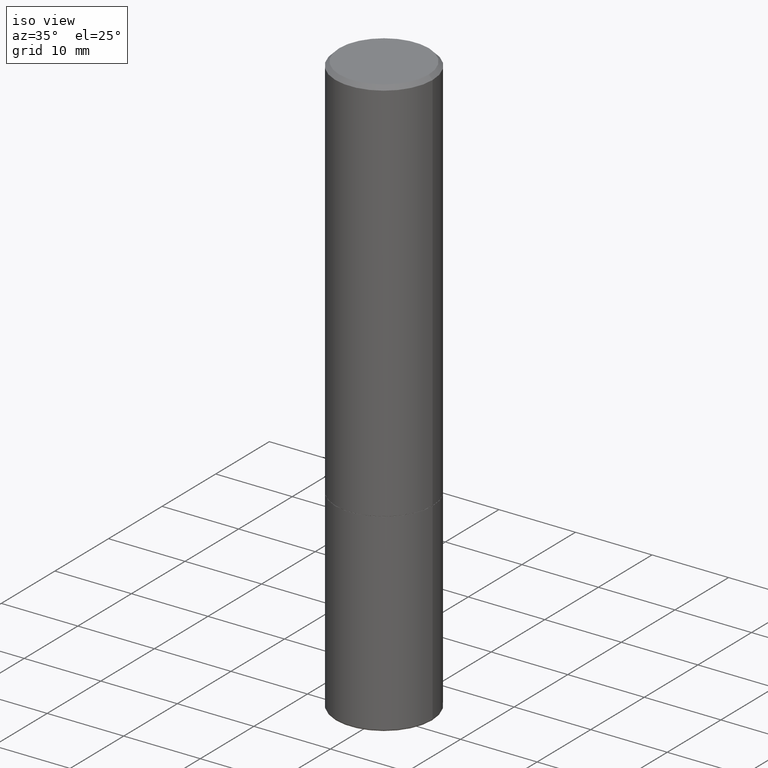
[diagram: clean part render]
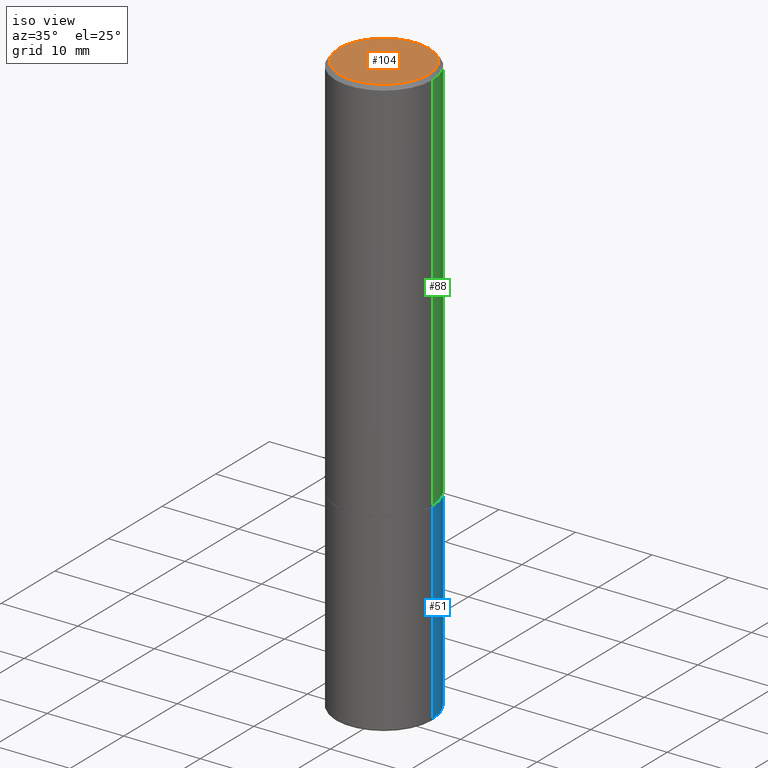
[diagram: same view with three faces highlighted in distinct colors, each labeled with its STEP entity id]
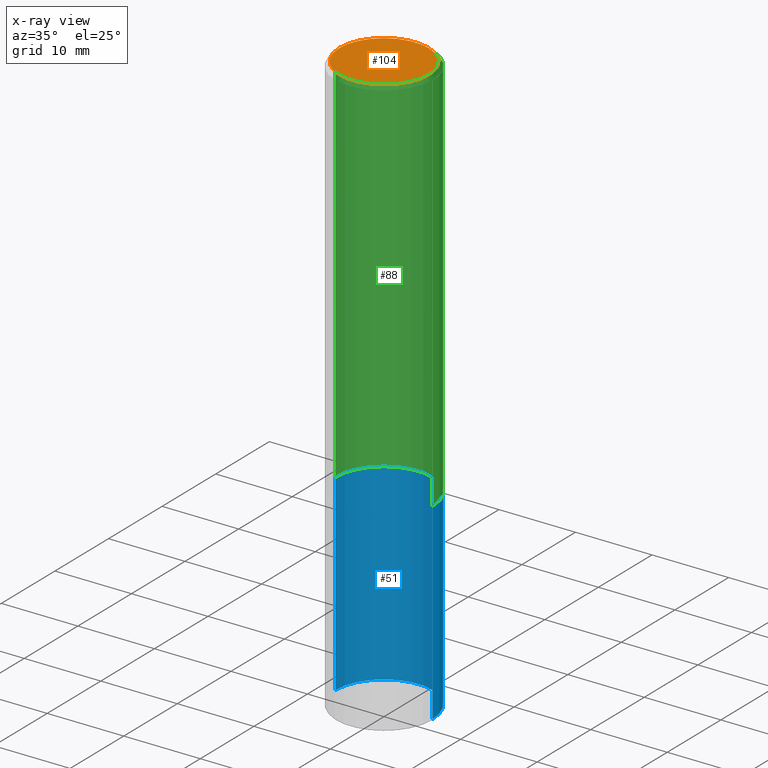
[diagram: x-ray of the same camera — body ghosted, the three highlighted faces saturated]
A machine part, iso view with three faces highlighted in distinct colors.
The next image is the same camera in x-ray (body ghosted, the three faces saturated) — at least one of them is partly hidden behind the body in this view.
Their STEP definitions:

[orange] entity #104 — the highlighted planar face has unit normal (0, -0, -1).
#18 = CARTESIAN_POINT ( 'NONE',  ( -0.2299999999999999267, 1.640996229256272519E-15, 4.695363739109317495E-17 ) ) ;
#64 = CIRCLE ( 'NONE', #195, 0.2299999999999999267 ) ;
#67 = DIRECTION ( 'NONE',  ( 2.438088387897960049E-29, -3.491481338843145188E-15, -1.000000000000000000 ) ) ;
#71 = EDGE_LOOP ( 'NONE', ( #314, #197 ) ) ;
#75 = EDGE_CURVE ( 'NONE', #294, #129, #64, .T. ) ;
#84 = DIRECTION ( 'NONE',  ( -2.445468806185136597E-29, 3.491481338843145583E-15, 1.000000000000000000 ) ) ;
#93 = CIRCLE ( 'NONE', #203, 0.2299999999999999267 ) ;
#102 = PLANE ( 'NONE',  #267 ) ;
#104 = ADVANCED_FACE ( 'NONE', ( #136 ), #102, .F. ) ;
#115 = CARTESIAN_POINT ( 'NONE',  ( -1.148236555768741665E-45, 1.639377487418492057E-31, 4.695363739110452099E-17 ) ) ;
#128 = CARTESIAN_POINT ( 'NONE',  ( 0.2299999999999999267, -1.681434332853598617E-15, 4.695363739111602110E-17 ) ) ;
#129 = VERTEX_POINT ( 'NONE', #18 ) ;
#136 = FACE_OUTER_BOUND ( 'NONE', #71, .T. ) ;
#139 = CARTESIAN_POINT ( 'NONE',  ( -1.148236555768741665E-45, 1.639377487418492057E-31, 4.695363739110452099E-17 ) ) ;
#169 = DIRECTION ( 'NONE',  ( -2.445468806185136597E-29, 3.491481338843145583E-15, 1.000000000000000000 ) ) ;
#175 = DIRECTION ( 'NONE',  ( -1.000000000000000000, 6.982962677686265922E-15, -4.876176775795935793E-29 ) ) ;
#195 = AXIS2_PLACEMENT_3D ( 'NONE', #139, #169, #296 ) ;
#197 = ORIENTED_EDGE ( 'NONE', *, *, #75, .T. ) ;
#203 = AXIS2_PLACEMENT_3D ( 'NONE', #115, #84, #211 ) ;
#211 = DIRECTION ( 'NONE',  ( 1.000000000000000000, -6.982962677686267499E-15, 4.875813741439101456E-29 ) ) ;
#214 = EDGE_CURVE ( 'NONE', #129, #294, #93, .T. ) ;
#267 = AXIS2_PLACEMENT_3D ( 'NONE', #363, #67, #175 ) ;
#294 = VERTEX_POINT ( 'NONE', #128 ) ;
#296 = DIRECTION ( 'NONE',  ( 1.000000000000000000, -6.982962677686267499E-15, 4.875813741439101456E-29 ) ) ;
#314 = ORIENTED_EDGE ( 'NONE', *, *, #214, .T. ) ;
#363 = CARTESIAN_POINT ( 'NONE',  ( 1.606081415867840870E-15, 0.2299999999999999267, -7.795638892383710465E-16 ) ) ;

[blue] entity #51 — the highlighted cylindrical surface (partial cylindrical patch) has radius 6.35 mm, axis along (-0, 0, 1).
#1 = CARTESIAN_POINT ( 'NONE',  ( 7.311951730493558245E-29, -1.043952920314100628E-14, -2.990000000000000213 ) ) ;
#2 = ORIENTED_EDGE ( 'NONE', *, *, #366, .F. ) ;
#27 = CARTESIAN_POINT ( 'NONE',  ( 4.890937612370273754E-29, -6.982962677686291954E-15, -2.000000000000000444 ) ) ;
#32 = VERTEX_POINT ( 'NONE', #393 ) ;
#34 = ORIENTED_EDGE ( 'NONE', *, *, #339, .F. ) ;
#51 = ADVANCED_FACE ( 'NONE', ( #326 ), #99, .T. ) ;
#54 = VECTOR ( 'NONE', #288, 39.37007874015748143 ) ;
#87 = DIRECTION ( 'NONE',  ( -2.445468806185136597E-29, 3.491481338843145583E-15, 1.000000000000000000 ) ) ;
#99 = CYLINDRICAL_SURFACE ( 'NONE', #292, 0.2500000000000000000 ) ;
#125 = DIRECTION ( 'NONE',  ( 1.000000000000000000, -6.982962677686262766E-15, 0.000000000000000000 ) ) ;
#132 = ORIENTED_EDGE ( 'NONE', *, *, #372, .T. ) ;
#141 = CARTESIAN_POINT ( 'NONE',  ( 0.000000000000000000, 0.000000000000000000, 0.000000000000000000 ) ) ;
#158 = DIRECTION ( 'NONE',  ( -2.445468806185136597E-29, 3.491481338843145583E-15, 1.000000000000000000 ) ) ;
#160 = CARTESIAN_POINT ( 'NONE',  ( -0.2500000000000000000, 1.776356839400250465E-15, -1.229733772563726445E-29 ) ) ;
#162 = VERTEX_POINT ( 'NONE', #207 ) ;
#185 = DIRECTION ( 'NONE',  ( 1.000000000000000000, -6.982962677686266711E-15, 0.000000000000000000 ) ) ;
#186 = DIRECTION ( 'NONE',  ( -2.445468806185136877E-29, 3.491481338843145188E-15, 1.000000000000000000 ) ) ;
#196 = VECTOR ( 'NONE', #186, 39.37007874015748143 ) ;
#202 = DIRECTION ( 'NONE',  ( -2.445468806185136597E-29, 3.491481338843145583E-15, 1.000000000000000000 ) ) ;
#207 = CARTESIAN_POINT ( 'NONE',  ( 0.2499999999999998890, -1.218526987256257138E-14, -2.990000000000000213 ) ) ;
#218 = CARTESIAN_POINT ( 'NONE',  ( -0.2499999999999998890, -8.663172363740755817E-15, -2.990000000000000213 ) ) ;
#223 = CIRCLE ( 'NONE', #374, 0.2500000000000000000 ) ;
#224 = CARTESIAN_POINT ( 'NONE',  ( -0.2500000000000000000, -6.934889101013398653E-15, -2.000000000000000444 ) ) ;
#241 = DIRECTION ( 'NONE',  ( 1.000000000000000000, -6.982962677686266711E-15, 4.876176775795935793E-29 ) ) ;
#260 = EDGE_LOOP ( 'NONE', ( #320, #132, #2, #34 ) ) ;
#262 = CARTESIAN_POINT ( 'NONE',  ( 0.2500000000000000000, -1.745740669421566678E-15, 1.219044193948983948E-29 ) ) ;
#288 = DIRECTION ( 'NONE',  ( -2.445468806185136877E-29, 3.491481338843145188E-15, 1.000000000000000000 ) ) ;
#292 = AXIS2_PLACEMENT_3D ( 'NONE', #141, #202, #241 ) ;
#299 = VERTEX_POINT ( 'NONE', #218 ) ;
#310 = EDGE_CURVE ( 'NONE', #162, #299, #404, .T. ) ;
#320 = ORIENTED_EDGE ( 'NONE', *, *, #310, .T. ) ;
#326 = FACE_OUTER_BOUND ( 'NONE', #260, .T. ) ;
#339 = EDGE_CURVE ( 'NONE', #162, #32, #350, .T. ) ;
#350 = LINE ( 'NONE', #262, #196 ) ;
#357 = VERTEX_POINT ( 'NONE', #224 ) ;
#366 = EDGE_CURVE ( 'NONE', #32, #357, #223, .T. ) ;
#372 = EDGE_CURVE ( 'NONE', #299, #357, #414, .T. ) ;
#374 = AXIS2_PLACEMENT_3D ( 'NONE', #27, #158, #185 ) ;
#383 = AXIS2_PLACEMENT_3D ( 'NONE', #1, #87, #125 ) ;
#393 = CARTESIAN_POINT ( 'NONE',  ( 0.2500000000000000000, -8.728703347107858632E-15, -2.000000000000000444 ) ) ;
#404 = CIRCLE ( 'NONE', #383, 0.2500000000000000000 ) ;
#414 = LINE ( 'NONE', #160, #54 ) ;

[green] entity #88 — the highlighted cylindrical surface (partial cylindrical patch) has radius 6.35 mm, axis along (-0, 0, 1).
#8 = CARTESIAN_POINT ( 'NONE',  ( 0.2500000000000002220, -8.725211865769017202E-15, -1.999000000000000110 ) ) ;
#10 = EDGE_CURVE ( 'NONE', #30, #228, #101, .T. ) ;
#26 = LINE ( 'NONE', #126, #73 ) ;
#28 = CARTESIAN_POINT ( 'NONE',  ( -0.2500000000000001110, 1.776356839400251254E-15, -1.229733772563727146E-29 ) ) ;
#30 = VERTEX_POINT ( 'NONE', #328 ) ;
#39 = CARTESIAN_POINT ( 'NONE',  ( 0.000000000000000000, 0.000000000000000000, 0.000000000000000000 ) ) ;
#43 = CARTESIAN_POINT ( 'NONE',  ( -0.2500000000000002220, -1.748293572161901516E-15, -1.999000000000000110 ) ) ;
#44 = DIRECTION ( 'NONE',  ( 1.000000000000000000, -6.982962677686267499E-15, 4.876176775795936353E-29 ) ) ;
#69 = DIRECTION ( 'NONE',  ( 1.000000000000000000, -6.982962677686266711E-15, 0.000000000000000000 ) ) ;
#73 = VECTOR ( 'NONE', #289, 39.37007874015748143 ) ;
#82 = VERTEX_POINT ( 'NONE', #8 ) ;
#88 = ADVANCED_FACE ( 'NONE', ( #206 ), #304, .T. ) ;
#101 = CIRCLE ( 'NONE', #300, 0.2500000000000000000 ) ;
#111 = ORIENTED_EDGE ( 'NONE', *, *, #135, .T. ) ;
#114 = DIRECTION ( 'NONE',  ( -2.445468806185136597E-29, 3.491481338843145583E-15, 1.000000000000000000 ) ) ;
#123 = AXIS2_PLACEMENT_3D ( 'NONE', #39, #236, #44 ) ;
#126 = CARTESIAN_POINT ( 'NONE',  ( 0.2500000000000001110, -1.745740669421567664E-15, 1.219044193948984649E-29 ) ) ;
#135 = EDGE_CURVE ( 'NONE', #82, #403, #183, .T. ) ;
#138 = AXIS2_PLACEMENT_3D ( 'NONE', #180, #114, #340 ) ;
#178 = CARTESIAN_POINT ( 'NONE',  ( -0.2500000000000000000, 1.675911042644703577E-15, -0.02000000000000005593 ) ) ;
#180 = CARTESIAN_POINT ( 'NONE',  ( 4.888492143564088712E-29, -6.979471196347448158E-15, -1.999000000000000110 ) ) ;
#183 = CIRCLE ( 'NONE', #138, 0.2500000000000002220 ) ;
#206 = FACE_OUTER_BOUND ( 'NONE', #380, .T. ) ;
#217 = VECTOR ( 'NONE', #381, 39.37007874015748143 ) ;
#228 = VERTEX_POINT ( 'NONE', #178 ) ;
#236 = DIRECTION ( 'NONE',  ( -2.445468806185136597E-29, 3.491481338843145583E-15, 1.000000000000000000 ) ) ;
#257 = LINE ( 'NONE', #28, #217 ) ;
#264 = CARTESIAN_POINT ( 'NONE',  ( 4.890937612370287172E-31, -6.982962677686310098E-17, -0.02000000000000005593 ) ) ;
#275 = EDGE_CURVE ( 'NONE', #82, #30, #26, .T. ) ;
#280 = ORIENTED_EDGE ( 'NONE', *, *, #275, .F. ) ;
#289 = DIRECTION ( 'NONE',  ( -2.445468806185136877E-29, 3.491481338843145188E-15, 1.000000000000000000 ) ) ;
#300 = AXIS2_PLACEMENT_3D ( 'NONE', #264, #302, #69 ) ;
#302 = DIRECTION ( 'NONE',  ( -2.445468806185136597E-29, 3.491481338843145583E-15, 1.000000000000000000 ) ) ;
#304 = CYLINDRICAL_SURFACE ( 'NONE', #123, 0.2500000000000001110 ) ;
#315 = EDGE_CURVE ( 'NONE', #403, #228, #257, .T. ) ;
#328 = CARTESIAN_POINT ( 'NONE',  ( 0.2500000000000000000, -1.784954126219746189E-15, -0.02000000000000005593 ) ) ;
#340 = DIRECTION ( 'NONE',  ( 1.000000000000000000, -6.982962677686268288E-15, 0.000000000000000000 ) ) ;
#355 = ORIENTED_EDGE ( 'NONE', *, *, #10, .F. ) ;
#380 = EDGE_LOOP ( 'NONE', ( #111, #390, #355, #280 ) ) ;
#381 = DIRECTION ( 'NONE',  ( -2.445468806185136877E-29, 3.491481338843145188E-15, 1.000000000000000000 ) ) ;
#390 = ORIENTED_EDGE ( 'NONE', *, *, #315, .T. ) ;
#403 = VERTEX_POINT ( 'NONE', #43 ) ;